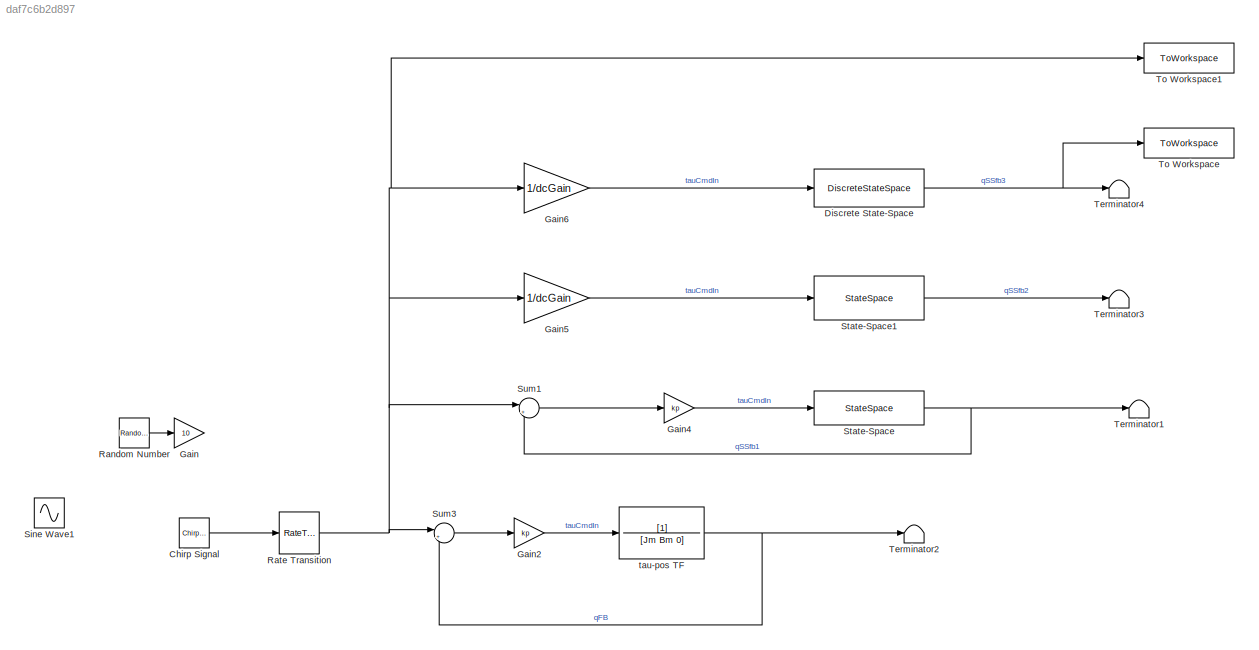
MODEL slx_daf7c6b2d897
KIND model
CONFIG AbsTol = auto
CONFIG EnableMultiTasking = off
CONFIG FixedStep = dt
CONFIG MaxStep = auto
CONFIG MinStep = auto
CONFIG RelTol = 1e-3
CONFIG SampleTimeConstraint = Unconstrained
CONFIG SolverName = ode5
CONFIG StartTime = 0.0
CONFIG StopTime = 131.071
BLOCK [Reference] Chirp Signal  REF=simulink/Sources/Chirp Signal
  Ports = [0, 1]
  SourceBlock = simulink/Sources/Chirp Signal
  SourceProductBaseCode = SL
  SourceType = chirp
BLOCK [DiscreteStateSpace] Discrete State-Space
  A = ssDisCloseLoop.A
  B = ssDisCloseLoop.B
  C = ssDisCloseLoop.C
  D = ssDisCloseLoop.D
  SampleTime = 0.001
BLOCK [Gain] Gain
  Commented = on
  Gain = 10
BLOCK [Gain] Gain2
  Gain = kp
BLOCK [Gain] Gain4
  Gain = kp
BLOCK [Gain] Gain5
  Gain = 1/dcGain
BLOCK [Gain] Gain6
  Gain = 1/dcGain
BLOCK [RandomNumber] Random Number
  Commented = on
  SampleTime = 0.5
  Seed = 11111
  Variance = 10
BLOCK [RateTransition] Rate Transition
  Deterministic = off
  OutPortSampleTime = 0.001
BLOCK [Sin] Sine Wave1
  Commented = on
  Frequency = 23
  Ports = [0, 1]
  SampleTime = 0
BLOCK [StateSpace] State-Space
  A = A
  B = B
  C = C
  D = 0
  InitialCondition = 0
  Ports = [1, 1]
BLOCK [StateSpace] State-Space1
  A = ssConCloseLoop.A
  B = ssConCloseLoop.B
  C = ssConCloseLoop.C
  D = ssConCloseLoop.D
  InitialCondition = 0
  ParameterTunability = Optimized
  Ports = [1, 1]
BLOCK [Sum] Sum1
  Inputs = |+-
  Ports = [2, 1]
BLOCK [Sum] Sum3
  Inputs = |+-
  Ports = [2, 1]
BLOCK [Terminator] Terminator1
BLOCK [Terminator] Terminator2
BLOCK [Terminator] Terminator3
BLOCK [Terminator] Terminator4
BLOCK [ToWorkspace] To Workspace
  FixptAsFi = on
  MaxDataPoints = inf
  Ports = [1]
  SampleTime = -1
  SaveFormat = Timeseries
  VariableName = chirpOutput
BLOCK [ToWorkspace] To Workspace1
  FixptAsFi = on
  MaxDataPoints = inf
  Ports = [1]
  SampleTime = -1
  SaveFormat = Timeseries
  VariableName = chirpInput
BLOCK [TransferFcn] tau-pos TF
  Denominator = [Jm Bm 0]
LINE Chirp Signal:1 -> Rate Transition:1
NET Discrete State-Space:1 -> Terminator4:1, To Workspace:1
LINE Gain2:1 -> tau-pos TF:1
LINE Gain4:1 -> State-Space:1
LINE Gain5:1 -> State-Space1:1
LINE Gain6:1 -> Discrete State-Space:1
LINE Random Number:1 -> Gain:1
NET Rate Transition:1 -> Gain5:1, Gain6:1, Sum1:1, Sum3:1, To Workspace1:1
LINE State-Space1:1 -> Terminator3:1
NET State-Space:1 -> Sum1:2, Terminator1:1
LINE Sum1:1 -> Gain4:1
LINE Sum3:1 -> Gain2:1
NET tau-pos TF:1 -> Sum3:2, Terminator2:1
note: NET lines group one-source signal fan-out (src -> all destinations, sorted); 1:1 wires keep LINE
